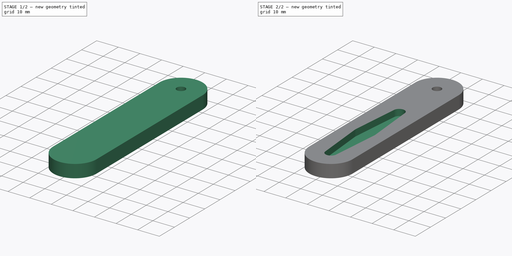
[diagram: build sequence overview — one tinted view per stage of 2, left to right]
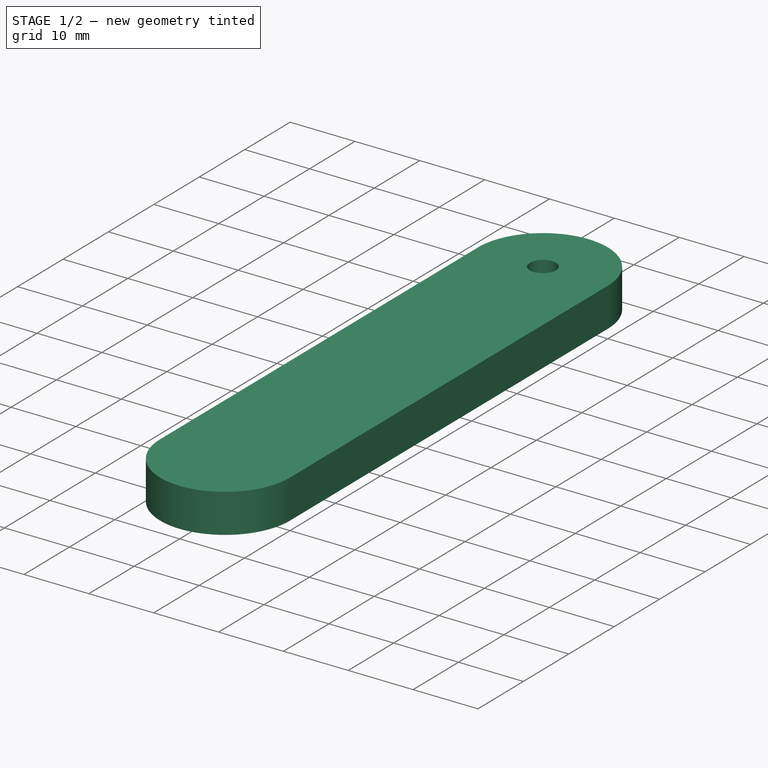
[diagram: stage 1 of 2 — iso view after this stage's code; geometry added in this stage tinted green]
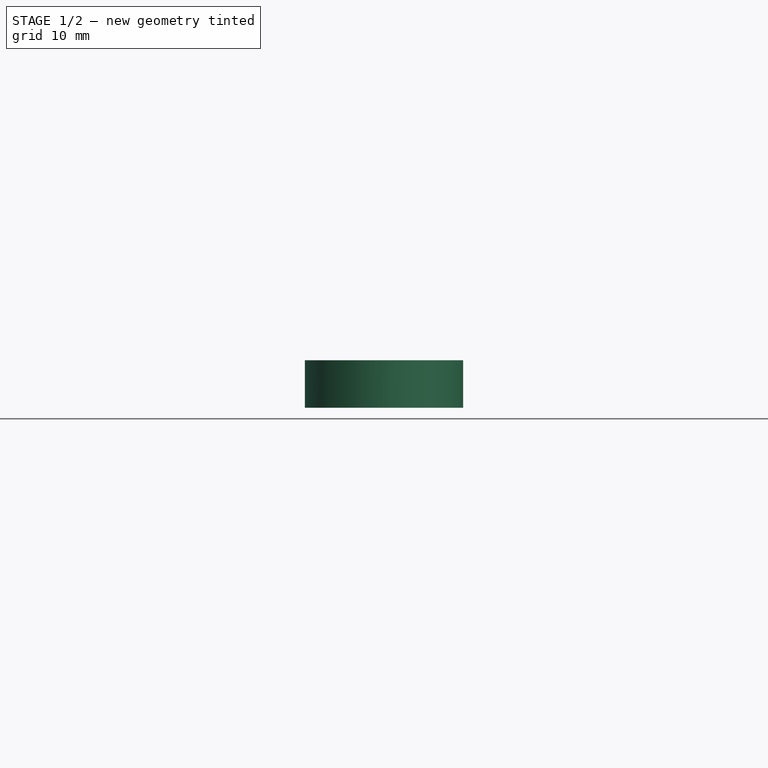
[diagram: stage 1 of 2 — front view after this stage's code; geometry added in this stage tinted green]
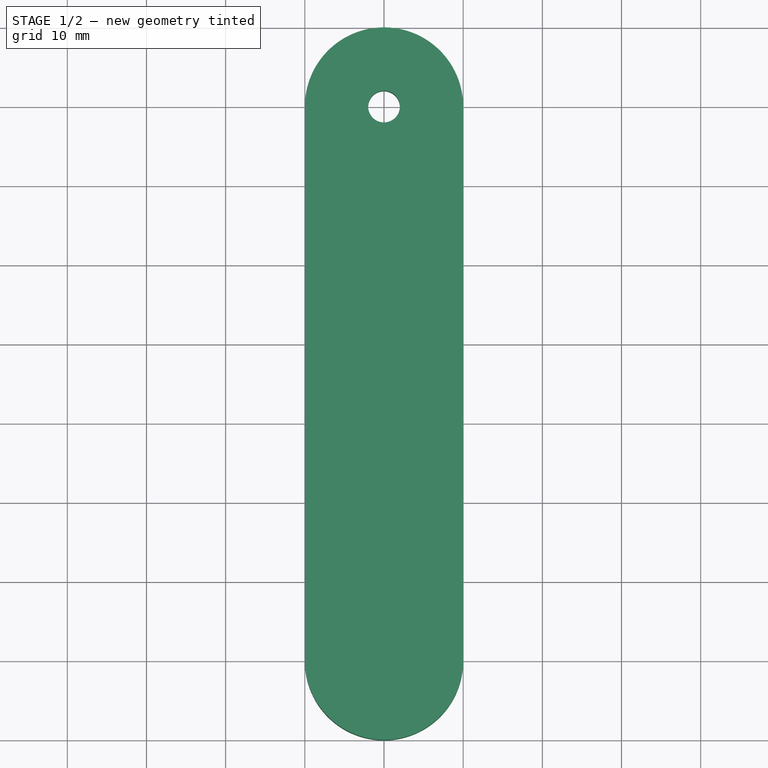
[diagram: stage 1 of 2 — top view after this stage's code; geometry added in this stage tinted green]
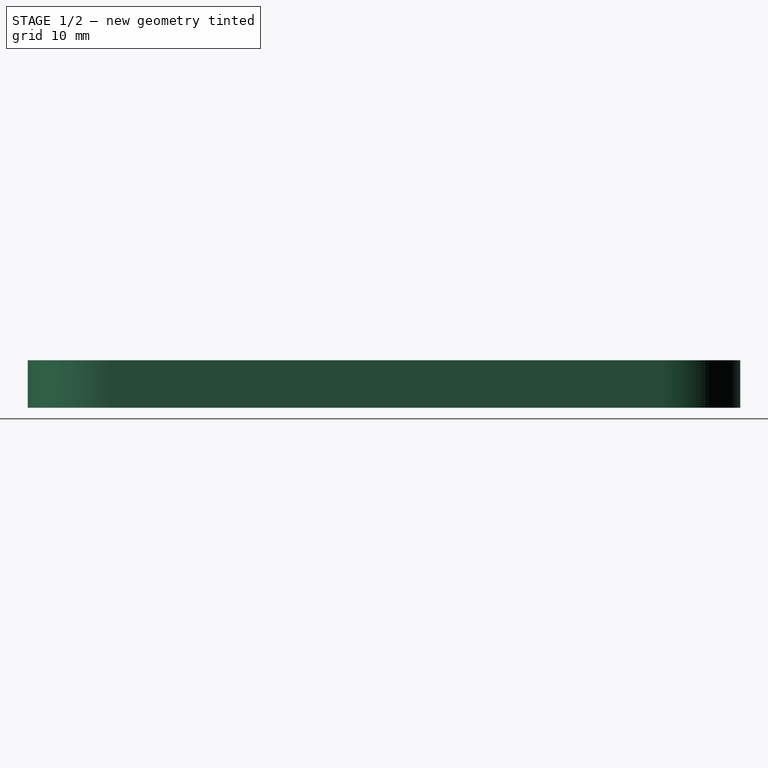
[diagram: stage 1 of 2 — right view after this stage's code; geometry added in this stage tinted green]
FCSTD DOCUMENT  (FreeCAD 0.18R4 (GitTag))
Label: Unununium HD-1160A Horn Connector
License: All rights reserved
LicenseURL: http://en.wikipedia.org/wiki/All_rights_reserved
objects: Sketcher::SketchObject×3, Drawing::FeatureViewPart×3, PartDesign::Pad×2, PartDesign::Body×2, PartDesign::Pocket×1, Part::Cut×1, Drawing::FeaturePage×1
note: 12 computed .brp shape members not serialized (recipe doc carries the construction recipe); baked Part::Feature solids carry a one-line shape summary decoded from their .brp

FEATURE [PartDesign::Body] Body  label="Horn"
  Group = -> [Sketch,Pad]
  Origin = -> Origin
  Tip = -> Pad
FEATURE [Sketcher::SketchObject] Sketch001
  MapMode = 5
  Support = -> [XY_Plane001]
  sketch-geometry (4):
    g0: ArcOfCircle CenterX=0 CenterY=0 CenterZ=0 NormalX=0 NormalY=0 NormalZ=1 AngleXU=0 Radius=10 StartAngle=3.14159 EndAngle=6.28319
    g1: ArcOfCircle CenterX=1e-16 CenterY=70 CenterZ=0 NormalX=0 NormalY=0 NormalZ=1 AngleXU=0 Radius=10 StartAngle=0 EndAngle=3.14159
    g2: LineSegment StartX=10 StartY=-2.4e-15 StartZ=0 EndX=10 EndY=70 EndZ=0
    g3: LineSegment StartX=-10 StartY=-3.2e-15 StartZ=0 EndX=-10 EndY=70 EndZ=0
  constraints (9):
    c: Tangent(g0,g3) = 1.5708
    c: Tangent(g0,g2) = -1.5708
    c: Tangent(g2,g1) = -1.5708
    c: Tangent(g3,g1) = 1.5708
    c: Vertical(g2)
    c: Equal(g0,g1)
    c: Coincident(g-1,g0)
    c: DistanceY(g2,g2) = 70
    c: Radius(g0) = 10
FEATURE [PartDesign::Pad] Pad001
  Length = 6
  Length2 = 100
  Profile = -> Sketch001
  Reversed = true
  Type = 0
FEATURE [Sketcher::SketchObject] Sketch002
  ExternalGeometry = -> [Pad001]
  MapMode = 5
  Support = -> [XY_Plane001]
  sketch-geometry (1):
    g0: Circle CenterX=9e-16 CenterY=70 CenterZ=0 NormalX=0 NormalY=0 NormalZ=1 AngleXU=0 Radius=2
  constraints (2):
    c: Radius(g0) = 2
    c: Coincident(g-3,g0)
FEATURE [PartDesign::Pocket] Pocket
  BaseFeature = -> Pad001
  Length = 5
  Length2 = 100
  Midplane = true
  Profile = -> Sketch002
  Type = 1
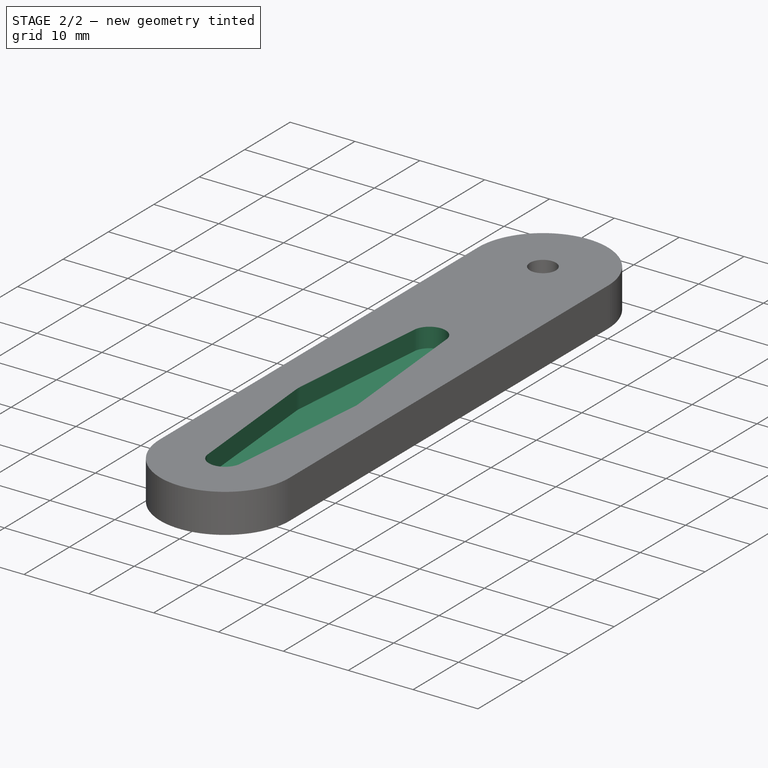
[diagram: stage 2 of 2 — iso view after this stage's code; geometry added in this stage tinted green]
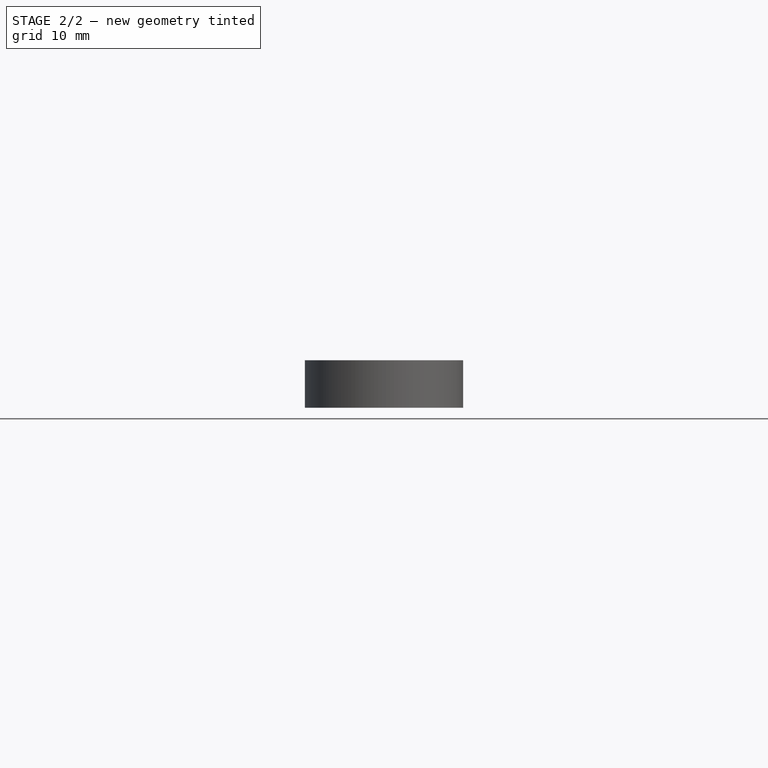
[diagram: stage 2 of 2 — front view after this stage's code; geometry added in this stage tinted green]
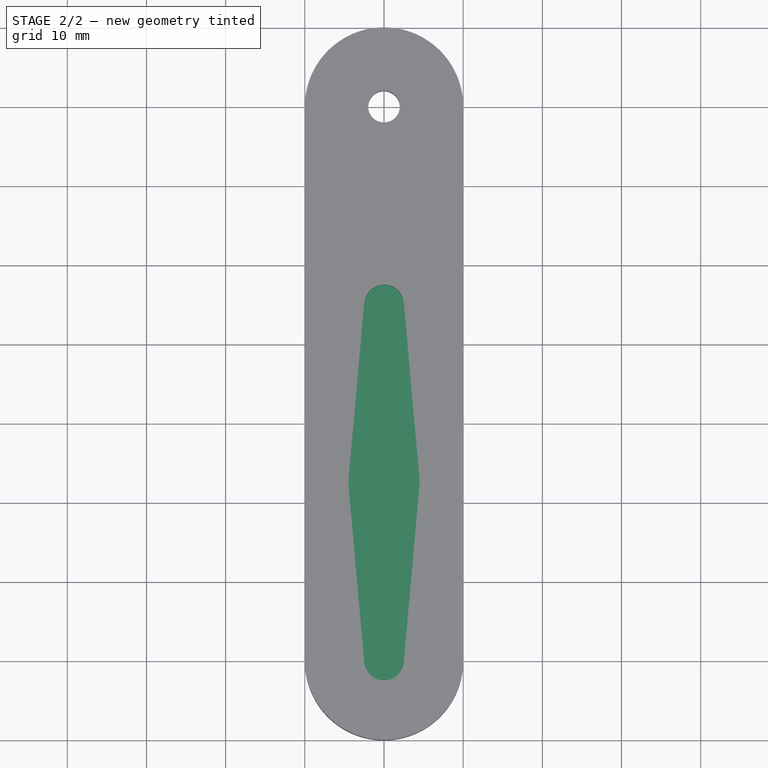
[diagram: stage 2 of 2 — top view after this stage's code; geometry added in this stage tinted green]
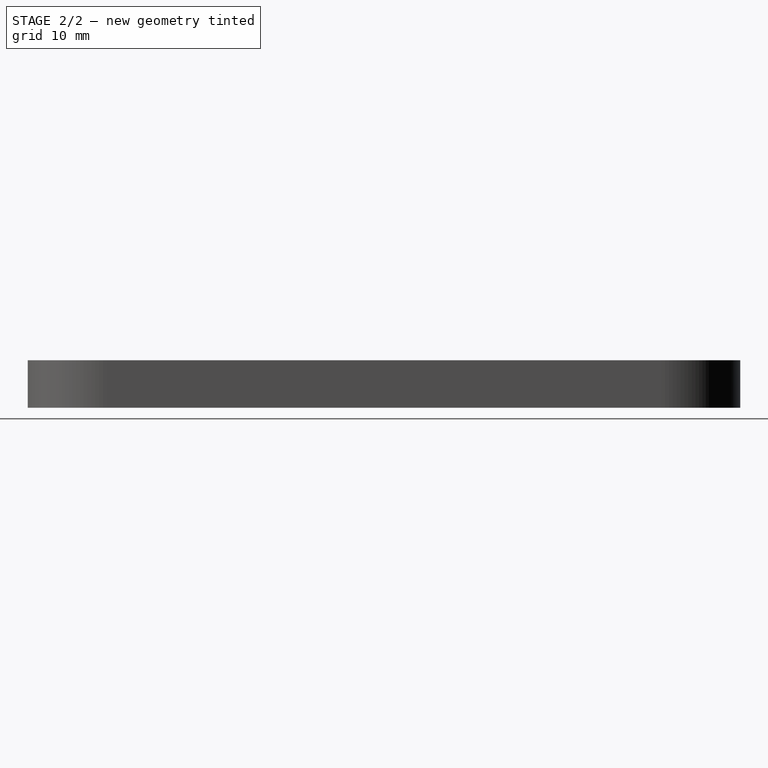
[diagram: stage 2 of 2 — right view after this stage's code; geometry added in this stage tinted green]
FEATURE [Sketcher::SketchObject] Sketch
  MapMode = 5
  Support = -> [XY_Plane]
  sketch-geometry (10):
    g0: ArcOfCircle CenterX=0 CenterY=0 CenterZ=0 NormalX=0 NormalY=0 NormalZ=1 AngleXU=0 Radius=2.5 StartAngle=3.2306 EndAngle=6.19418
    g1: ArcOfCircle CenterX=0 CenterY=22.5 CenterZ=0 NormalX=0 NormalY=0 NormalZ=1 AngleXU=0 Radius=4.5 StartAngle=6.19418 EndAngle=6.37219
    g2: ArcOfCircle CenterX=0 CenterY=45 CenterZ=0 NormalX=0 NormalY=0 NormalZ=1 AngleXU=0 Radius=2.5 StartAngle=0.0890064 EndAngle=3.05259
    g3: LineSegment [constr] StartX=0 StartY=0 StartZ=0 EndX=0 EndY=45 EndZ=0
    g4: LineSegment StartX=2.4901 StartY=45.2222 StartZ=0 EndX=4.48219 EndY=22.9 EndZ=0
    g5: LineSegment StartX=-2.4901 StartY=45.2222 StartZ=0 EndX=-4.48219 EndY=22.9 EndZ=0
    g6: LineSegment StartX=4.48219 StartY=22.1 StartZ=0 EndX=2.4901 EndY=-0.222222 EndZ=0
    g7: LineSegment StartX=-4.48219 StartY=22.1 StartZ=0 EndX=-2.4901 EndY=-0.222222 EndZ=0
    g8: ArcOfCircle CenterX=0 CenterY=22.5 CenterZ=0 NormalX=0 NormalY=0 NormalZ=1 AngleXU=0 Radius=4.5 StartAngle=3.05259 EndAngle=3.2306
    g9: LineSegment [constr] StartX=-2.4901 StartY=45.2222 StartZ=0 EndX=2.4901 EndY=45.2222 EndZ=0
  constraints (22):
    c: Coincident(g0,g-1)
    c: Radius(g2) = 2.5
    c: Radius(g0) = 2.5
    c: Radius(g1) = 4.5
    c: Vertical(g3)
    c: DistanceY(g0,g3) = 45
    c: Coincident(g2,g3)
    c: Symmetric(g2,g0,g1)
    c: Equal(g1,g8)
    c: Tangent(g1,g6) = 1.5708
    c: Tangent(g1,g4) = 1.5708
    c: Coincident(g3,g0)
    c: Tangent(g0,g6) = 1.5708
    c: Tangent(g0,g7) = -1.5708
    c: Tangent(g2,g4) = 1.5708
    c: Symmetric(g2,g0,g8)
    c: Tangent(g5,g8) = -1.5708
    c: Tangent(g7,g8) = -1.5708
    c: Coincident(g5,g2)
    c: Horizontal(g9)
    c: Coincident(g9,g2)
    c: Coincident(g9,g2)
FEATURE [PartDesign::Pad] Pad
  Length = 3
  Length2 = 100
  Profile = -> Sketch
  Reversed = true
  Type = 0
FEATURE [PartDesign::Body] Body001  label="Horn Connector"
  Group = -> [Sketch001,Pad001,Sketch002,Pocket]
  Origin = -> Origin001
  Tip = -> Pocket
FEATURE [Part::Cut] Cut
  Base = -> Body001
  Tool = -> Body
FEATURE [Drawing::FeatureViewPart] Ortho  label="Ortho_0_0"
  Direction = (0,0,1)
  HiddenWidth = 0.15
  LineWidth = 0.35
  Rotation = 90
  Scale = 2
  ShowHiddenLines = true
  ShowSmoothLines = true
  Source = -> Cut
  Tolerance = 0.05
  ViewResult = <g id="Ortho_0_0"\n   transform="rotate(90,58.3333,63.3333) translate(58.3333,63.3333) scale(2,2)"\n  >\n<g   fill="none"\n   stroke="rgb(0, 0, 0)"\n   stroke-dasharray="0.2,0.1)"\n   stroke-linecap="butt"\n   stroke-linejoin="miter"\n   stroke-width="0.075000"\n   transform="scale(1,-1)"\n  >\n<path d="M-10 -7.65714e-15 A10 10 0 0 1 10 -2.44929e-15" /><path id= "2" d=" M -10 -3.22e-15 L -10 70 " />\n<path id= "3" d=" M 10 -2.45e-15 L 10 70 " />\n<path d="M10 70 A10 10 0 1 1 -10 70" /><circle cx ="9e-16" cy ="70" r ="2" /><path d="M2.4901 45.2222 A2.5 2.5 0 0 1 -2.4901 45.2222" /><path id= "7" d=" M -2.4901 45.2222 L -4.48219 22.9 " />\n<path d="M-4.48219 22.9 A4.5 4.5 0 0 1 -4.48219 22.1" /><path id= "9" d=" M -4.48219 22.1 L -2.4901 -0.222222 " />\n<path d="M-2.4901 -0.222222 A2.5 2.5 0 0 1 2.4901 -0.222222" /><path id= "11" d=" M 4.48219 22.1 L 2.4901 -0.222222 " />\n<path d="M4.48219 22.1 A4.5 4.5 0 0 1 4.48219 22.9" /><path id= "13" d=" M 2.4901 45.2222 L 4.48219 22.9 " />\n</g>\n<g   fill="none"\n   stroke="rgb(0, 0, 0)"\n   stroke-linecap="butt"\n   stroke-linejoin="miter"\n   stroke-width="0.175000"\n   transform="scale(1,-1)"\n  >\n<path d="M-10 -7.65714e-15 A10 10 0 0 1 10 -2.44929e-15" /><path id= "2" d=" M -10 -3.22e-15 L -10 70 " />\n<path id= "3" d=" M 10 -2.45e-15 L 10 70 " />\n<path d="M10 70 A10 10 0 1 1 -10 70" /><circle cx ="9e-16" cy ="70" r ="2" /><path d="M2.4901 45.2222 A2.5 2.5 0 0 1 -2.4901 45.2222" /><path id= "7" d=" M -2.4901 45.2222 L -4.48219 22.9 " />\n<path d="M-4.48219 22.9 A4.5 4.5 0 0 1 -4.48219 22.1" /><path id= "9" d=" M -4.48219 22.1 L -2.4901 -0.222222 " />\n<path d="M-2.4901 -0.222222 A2.5 2.5 0 0 1 2.4901 -0.222222" /><path id= "11" d=" M 4.48219 22.1 L 2.4901 -0.222222 " />\n<path d="M4.48219 22.1 A4.5 4.5 0 0 1 4.48219 22.9" /><path id= "13" d=" M 2.4901 45.2222 L 4.48219 22.9 " />\n</g>\n</g>
  Visible = true
  X = 58.3333
  Y = 63.3333
FEATURE [Drawing::FeatureViewPart] Ortho001  label="Ortho_1_0"
  Direction = (0,1,0)
  HiddenWidth = 0.15
  LineWidth = 0.35
  Rotation = 180
  Scale = 2
  ShowHiddenLines = true
  ShowSmoothLines = true
  Source = -> Cut
  Tolerance = 0.05
  ViewResult = <blob: 4710 chars omitted>
  Visible = true
  X = 246.667
  Y = 63.3333
FEATURE [Drawing::FeatureViewPart] Ortho002  label="Ortho_0_-1"
  Direction = (1,0,0)
  HiddenWidth = 0.15
  LineWidth = 0.35
  Rotation = -90
  Scale = 2
  ShowHiddenLines = true
  ShowSmoothLines = true
  Source = -> Cut
  Tolerance = 0.05
  ViewResult = <blob: 8307 chars omitted>
  Visible = true
  X = 58.3333
  Y = 116.667
FEATURE [Drawing::FeaturePage] Page
  EditableTexts = CHIN PENG CHENG | HD-1160A HORN CONNECTOR | TEAM UNUNUNIUM | FreeCAD DRAWING | 80X20X6 | A4 | 1:1 | U0001 | D0001 | 09/02/2021 | REV A
  Group = -> [Ortho,Ortho001,Ortho002]
  Template = D:/Program Files/FreeCAD 0.18/data/Mod/Drawing/Templates/A4_Landscape_ISO7200.svg
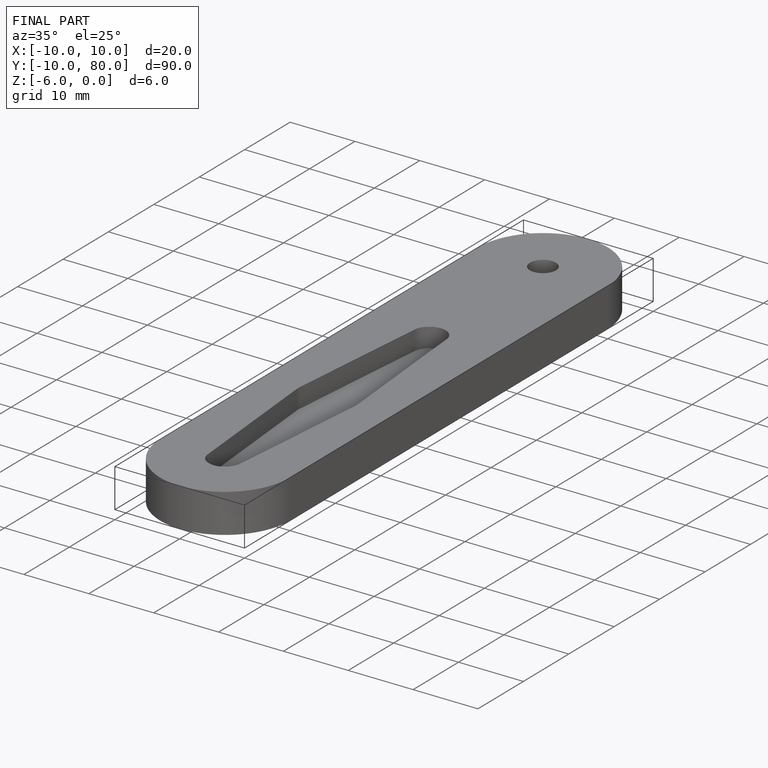
[diagram: finished part — iso view with bounding-box wireframe]
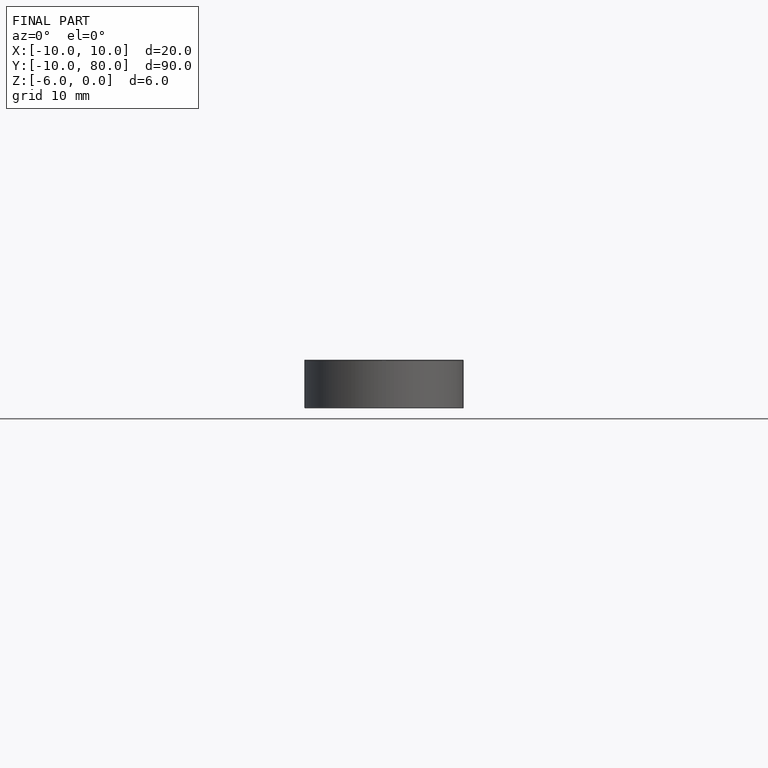
[diagram: finished part — front view with bounding-box wireframe]
